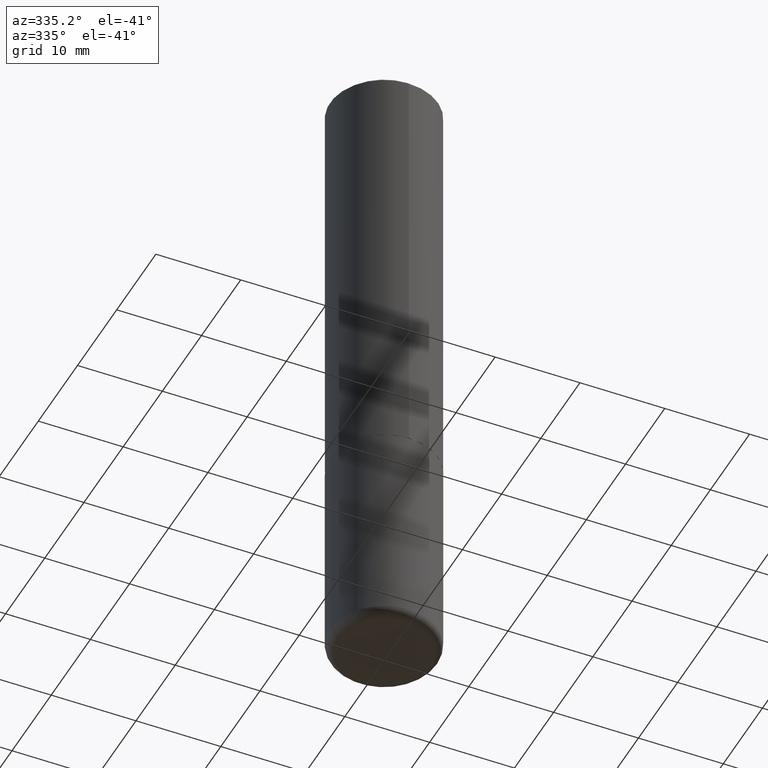
[diagram: clean part render]
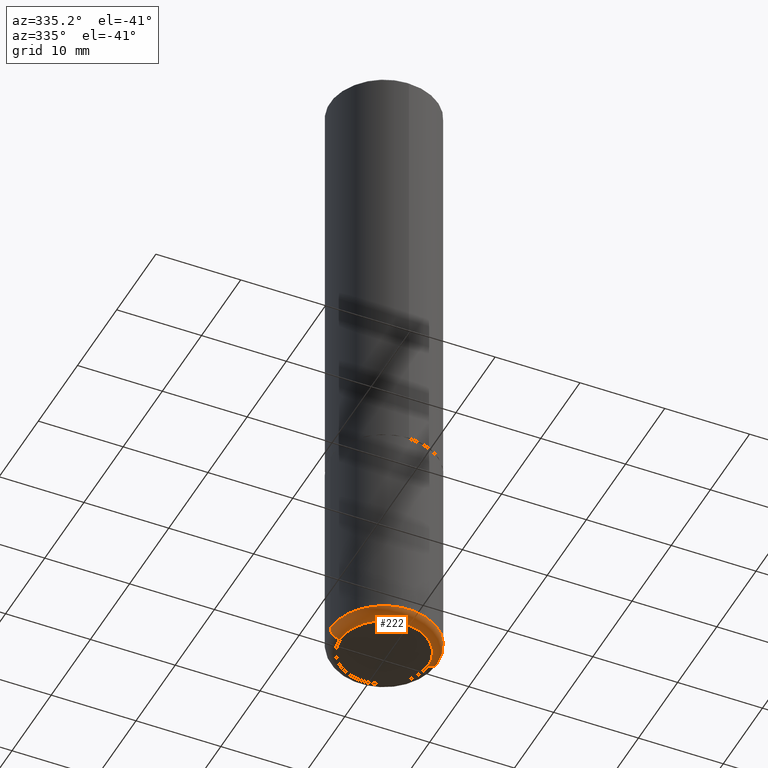
[diagram: same view with one face highlighted and labeled with its STEP entity id]
A machine part, auxiliary view. The second image highlights one B-rep face of the part: STEP entity #222.
In plain terms, the highlighted toroidal blend (fillet) surface has major radius 5.207 mm and minor (blend) radius 1.143 mm.
Its self-contained STEP definition (entity closure, byte-faithful):
#17 = AXIS2_PLACEMENT_3D ( 'NONE', #167, #98, #163 ) ;
#47 = ORIENTED_EDGE ( 'NONE', *, *, #188, .T. ) ;
#52 = EDGE_CURVE ( 'NONE', #61, #221, #224, .T. ) ;
#57 = CARTESIAN_POINT ( 'NONE',  ( 7.226360322277077836E-29, -1.031732735628149472E-14, -2.955000000000000071 ) ) ;
#59 = DIRECTION ( 'NONE',  ( 1.000000000000000000, -6.982962677686266711E-15, 4.883557194083112901E-29 ) ) ;
#61 = VERTEX_POINT ( 'NONE', #132 ) ;
#68 = CIRCLE ( 'NONE', #162, 0.04500000000000040773 ) ;
#87 = ORIENTED_EDGE ( 'NONE', *, *, #290, .T. ) ;
#92 = EDGE_CURVE ( 'NONE', #406, #61, #68, .T. ) ;
#98 = DIRECTION ( 'NONE',  ( -2.445468806185136597E-29, 3.491481338843145583E-15, 1.000000000000000000 ) ) ;
#115 = CARTESIAN_POINT ( 'NONE',  ( 7.336406418555412032E-29, -1.047444401652943951E-14, -3.000000000000000888 ) ) ;
#127 = CARTESIAN_POINT ( 'NONE',  ( -0.2049999999999999878, -8.779400962551236573E-15, -3.000000000000000888 ) ) ;
#132 = CARTESIAN_POINT ( 'NONE',  ( -0.2500000000000002220, -8.540970516881242679E-15, -2.955000000000000071 ) ) ;
#162 = AXIS2_PLACEMENT_3D ( 'NONE', #289, #292, #228 ) ;
#163 = DIRECTION ( 'NONE',  ( 1.000000000000000000, -6.982962677686269077E-15, 0.000000000000000000 ) ) ;
#167 = CARTESIAN_POINT ( 'NONE',  ( 7.226360322277077836E-29, -1.031732735628149472E-14, -2.955000000000000071 ) ) ;
#181 = EDGE_LOOP ( 'NONE', ( #185, #87, #47, #212 ) ) ;
#182 = TOROIDAL_SURFACE ( 'NONE', #355, 0.2049999999999999878, 0.04500000000000039385 ) ;
#185 = ORIENTED_EDGE ( 'NONE', *, *, #92, .F. ) ;
#188 = EDGE_CURVE ( 'NONE', #415, #221, #294, .T. ) ;
#201 = DIRECTION ( 'NONE',  ( -2.445468806185136597E-29, 3.491481338843145583E-15, 1.000000000000000000 ) ) ;
#212 = ORIENTED_EDGE ( 'NONE', *, *, #52, .F. ) ;
#221 = VERTEX_POINT ( 'NONE', #301 ) ;
#222 = ADVANCED_FACE ( 'NONE', ( #304 ), #182, .T. ) ;
#224 = CIRCLE ( 'NONE', #17, 0.2500000000000000555 ) ;
#228 = DIRECTION ( 'NONE',  ( -1.000000000000000000, 7.105427357600990815E-15, 0.000000000000000000 ) ) ;
#233 = DIRECTION ( 'NONE',  ( 1.000000000000000000, -6.982962677686247778E-15, 0.000000000000000000 ) ) ;
#239 = DIRECTION ( 'NONE',  ( 1.000000000000000000, -6.982962677686261977E-15, 0.000000000000000000 ) ) ;
#245 = AXIS2_PLACEMENT_3D ( 'NONE', #372, #264, #233 ) ;
#264 = DIRECTION ( 'NONE',  ( -6.982962677686266711E-15, -1.000000000000000000, 3.491481338843145583E-15 ) ) ;
#289 = CARTESIAN_POINT ( 'NONE',  ( -0.2049999999999999878, -8.860714747973288835E-15, -2.955000000000000071 ) ) ;
#290 = EDGE_CURVE ( 'NONE', #406, #415, #361, .T. ) ;
#292 = DIRECTION ( 'NONE',  ( 7.105427357601001859E-15, 1.000000000000000000, -3.491481338843145583E-15 ) ) ;
#294 = CIRCLE ( 'NONE', #245, 0.04500000000000040773 ) ;
#301 = CARTESIAN_POINT ( 'NONE',  ( 0.2500000000000002220, -1.206306802570306455E-14, -2.955000000000000071 ) ) ;
#304 = FACE_OUTER_BOUND ( 'NONE', #181, .T. ) ;
#345 = CARTESIAN_POINT ( 'NONE',  ( 0.2049999999999999878, -1.190595136545512292E-14, -3.000000000000000888 ) ) ;
#355 = AXIS2_PLACEMENT_3D ( 'NONE', #57, #201, #59 ) ;
#361 = CIRCLE ( 'NONE', #417, 0.2049999999999999878 ) ;
#372 = CARTESIAN_POINT ( 'NONE',  ( 0.2049999999999999878, -1.174883470520718129E-14, -2.955000000000000071 ) ) ;
#375 = DIRECTION ( 'NONE',  ( -2.445468806185136597E-29, 3.491481338843145583E-15, 1.000000000000000000 ) ) ;
#406 = VERTEX_POINT ( 'NONE', #127 ) ;
#415 = VERTEX_POINT ( 'NONE', #345 ) ;
#417 = AXIS2_PLACEMENT_3D ( 'NONE', #115, #375, #239 ) ;